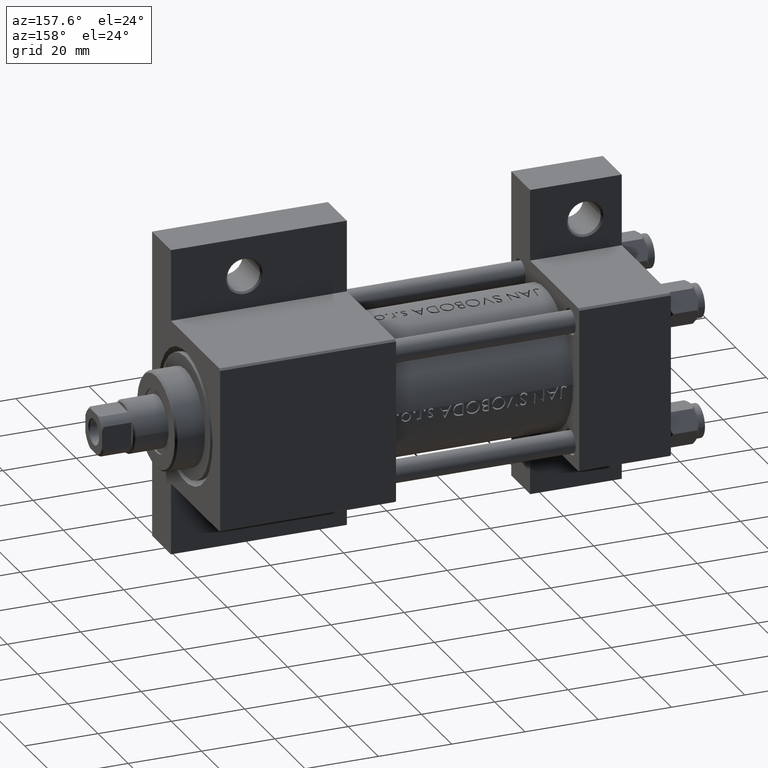
[diagram: clean part render]
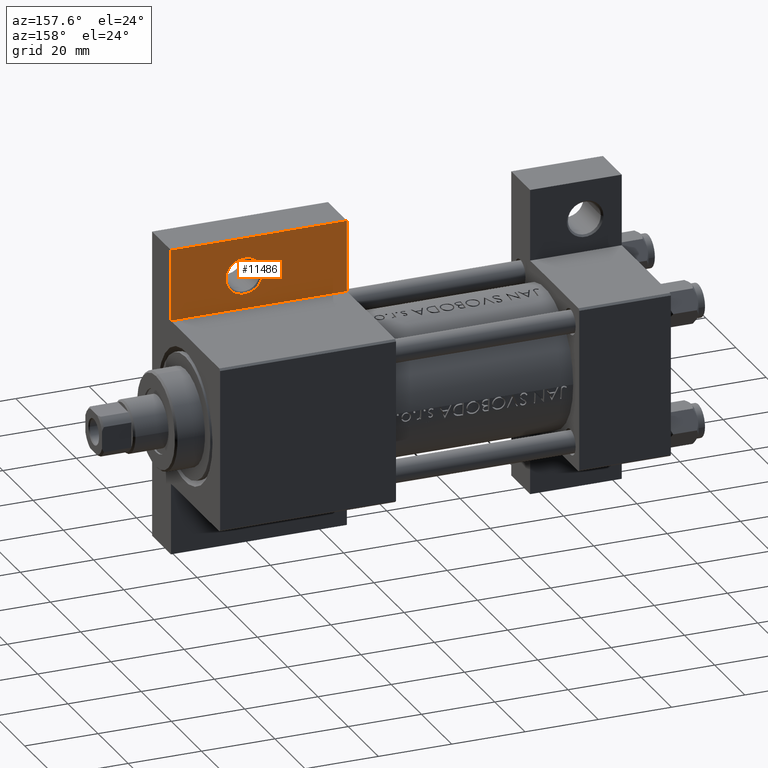
[diagram: same view with one face highlighted and labeled with its STEP entity id]
A machine part, auxiliary view. The second image highlights one B-rep face of the part: STEP entity #11486.
In plain terms, the highlighted planar face has unit normal (0, -1, 0).
Its self-contained STEP definition (entity closure, byte-faithful):
#203 = DIRECTION ( 'NONE',  ( -1.000000000000000000, -0.000000000000000000, -0.000000000000000000 ) ) ;
#252 = DIRECTION ( 'NONE',  ( 7.116814260417666541E-16, 1.000000000000000000, 0.000000000000000000 ) ) ;
#578 = DIRECTION ( 'NONE',  ( -1.000000000000000000, 0.000000000000000000, 0.000000000000000000 ) ) ;
#934 = VERTEX_POINT ( 'NONE', #42890 ) ;
#1010 = VECTOR ( 'NONE', #20276, 1000.000000000000000 ) ;
#1174 = CARTESIAN_POINT ( 'NONE',  ( 75.00000000000001421, -22.50000000000000000, -9.999999999999998224 ) ) ;
#2654 = DIRECTION ( 'NONE',  ( -1.000000000000000000, 0.000000000000000000, -0.000000000000000000 ) ) ;
#3004 = ORIENTED_EDGE ( 'NONE', *, *, #19346, .T. ) ;
#3033 = AXIS2_PLACEMENT_3D ( 'NONE', #35855, #46921, #2654 ) ;
#3166 = CIRCLE ( 'NONE', #16206, 4.999500000000073108 ) ;
#4189 = CARTESIAN_POINT ( 'NONE',  ( 103.0000000000000142, -31.50000000000000000, -9.999999999999998224 ) ) ;
#5643 = CARTESIAN_POINT ( 'NONE',  ( 123.0000000000000142, -22.49999999999999645, -9.999999999999980460 ) ) ;
#6141 = ORIENTED_EDGE ( 'NONE', *, *, #36865, .F. ) ;
#6550 = ORIENTED_EDGE ( 'NONE', *, *, #42434, .T. ) ;
#6881 = EDGE_CURVE ( 'NONE', #35857, #43512, #32681, .T. ) ;
#9182 = CARTESIAN_POINT ( 'NONE',  ( 98.00049999999993133, -31.50000000000000000, -9.999999999999998224 ) ) ;
#11048 = CARTESIAN_POINT ( 'NONE',  ( 103.0000000000000142, -31.50000000000000000, -9.999999999999998224 ) ) ;
#11486 = ADVANCED_FACE ( 'NONE', ( #17563, #17805 ), #39928, .F. ) ;
#11987 = DIRECTION ( 'NONE',  ( 0.000000000000000000, 0.000000000000000000, -1.000000000000000000 ) ) ;
#12572 = ORIENTED_EDGE ( 'NONE', *, *, #6881, .F. ) ;
#14897 = DIRECTION ( 'NONE',  ( -1.000000000000000000, 0.000000000000000000, 0.000000000000000000 ) ) ;
#15156 = CARTESIAN_POINT ( 'NONE',  ( 75.00000000000000000, -42.00000000000000711, -9.999999999999998224 ) ) ;
#15391 = LINE ( 'NONE', #15156, #37893 ) ;
#16108 = VERTEX_POINT ( 'NONE', #9182 ) ;
#16206 = AXIS2_PLACEMENT_3D ( 'NONE', #11048, #11987, #14897 ) ;
#17083 = ORIENTED_EDGE ( 'NONE', *, *, #44736, .F. ) ;
#17563 = FACE_BOUND ( 'NONE', #31345, .T. ) ;
#17805 = FACE_OUTER_BOUND ( 'NONE', #37666, .T. ) ;
#18869 = DIRECTION ( 'NONE',  ( 0.000000000000000000, 0.000000000000000000, -1.000000000000000000 ) ) ;
#19346 = EDGE_CURVE ( 'NONE', #47326, #16108, #3166, .T. ) ;
#20276 = DIRECTION ( 'NONE',  ( -0.000000000000000000, -1.000000000000000000, -0.000000000000000000 ) ) ;
#20620 = CARTESIAN_POINT ( 'NONE',  ( 107.9995000000000829, -31.50000000000000000, -9.999999999999998224 ) ) ;
#20753 = LINE ( 'NONE', #35428, #1010 ) ;
#23307 = DIRECTION ( 'NONE',  ( 1.000000000000000000, -1.445602896647340149E-16, 0.000000000000000000 ) ) ;
#28248 = VECTOR ( 'NONE', #203, 1000.000000000000000 ) ;
#30976 = CIRCLE ( 'NONE', #41072, 4.999500000000073108 ) ;
#31210 = VERTEX_POINT ( 'NONE', #5643 ) ;
#31345 = EDGE_LOOP ( 'NONE', ( #3004, #6550 ) ) ;
#32063 = CARTESIAN_POINT ( 'NONE',  ( 122.9999999999999858, -42.00000000000000711, -9.999999999999998224 ) ) ;
#32548 = CARTESIAN_POINT ( 'NONE',  ( 75.00000000000000000, -42.00000000000000711, -9.999999999999998224 ) ) ;
#32681 = LINE ( 'NONE', #33396, #28248 ) ;
#33396 = CARTESIAN_POINT ( 'NONE',  ( 75.00000000000000000, -42.00000000000000711, -9.999999999999998224 ) ) ;
#33673 = LINE ( 'NONE', #1174, #41035 ) ;
#35428 = CARTESIAN_POINT ( 'NONE',  ( 122.9999999999999858, -42.00000000000000711, -9.999999999999998224 ) ) ;
#35855 = CARTESIAN_POINT ( 'NONE',  ( 0.000000000000000000, 0.000000000000000000, -9.999999999999998224 ) ) ;
#35857 = VERTEX_POINT ( 'NONE', #32063 ) ;
#36865 = EDGE_CURVE ( 'NONE', #31210, #35857, #20753, .T. ) ;
#37666 = EDGE_LOOP ( 'NONE', ( #6141, #17083, #40506, #12572 ) ) ;
#37893 = VECTOR ( 'NONE', #252, 1000.000000000000000 ) ;
#39928 = PLANE ( 'NONE',  #3033 ) ;
#40506 = ORIENTED_EDGE ( 'NONE', *, *, #43763, .F. ) ;
#41035 = VECTOR ( 'NONE', #23307, 1000.000000000000000 ) ;
#41072 = AXIS2_PLACEMENT_3D ( 'NONE', #4189, #18869, #578 ) ;
#42434 = EDGE_CURVE ( 'NONE', #16108, #47326, #30976, .T. ) ;
#42890 = CARTESIAN_POINT ( 'NONE',  ( 75.00000000000001421, -22.50000000000000000, -9.999999999999998224 ) ) ;
#43512 = VERTEX_POINT ( 'NONE', #32548 ) ;
#43763 = EDGE_CURVE ( 'NONE', #43512, #934, #15391, .T. ) ;
#44736 = EDGE_CURVE ( 'NONE', #934, #31210, #33673, .T. ) ;
#46921 = DIRECTION ( 'NONE',  ( 0.000000000000000000, 0.000000000000000000, -1.000000000000000000 ) ) ;
#47326 = VERTEX_POINT ( 'NONE', #20620 ) ;